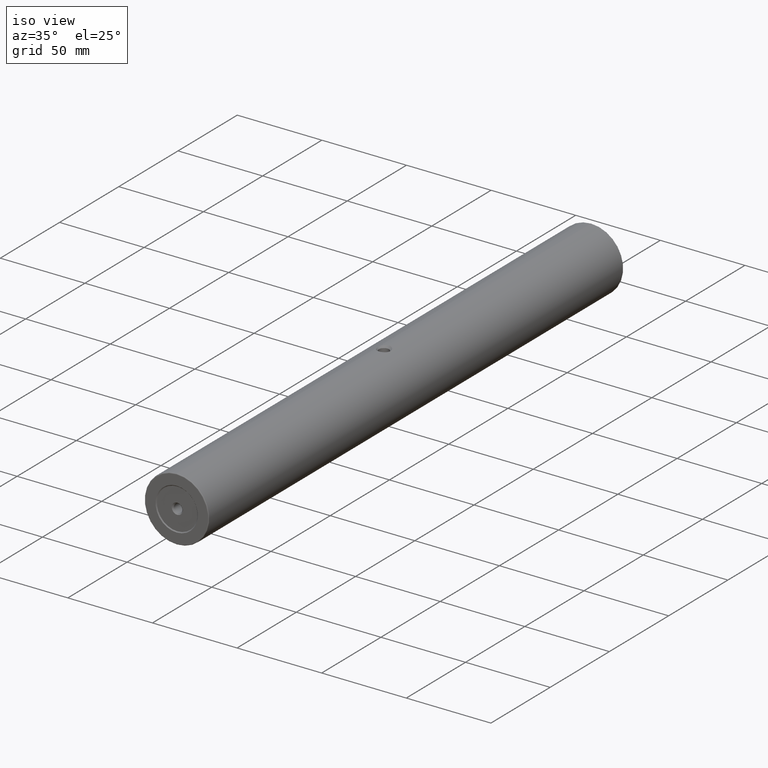
[diagram: clean part render]
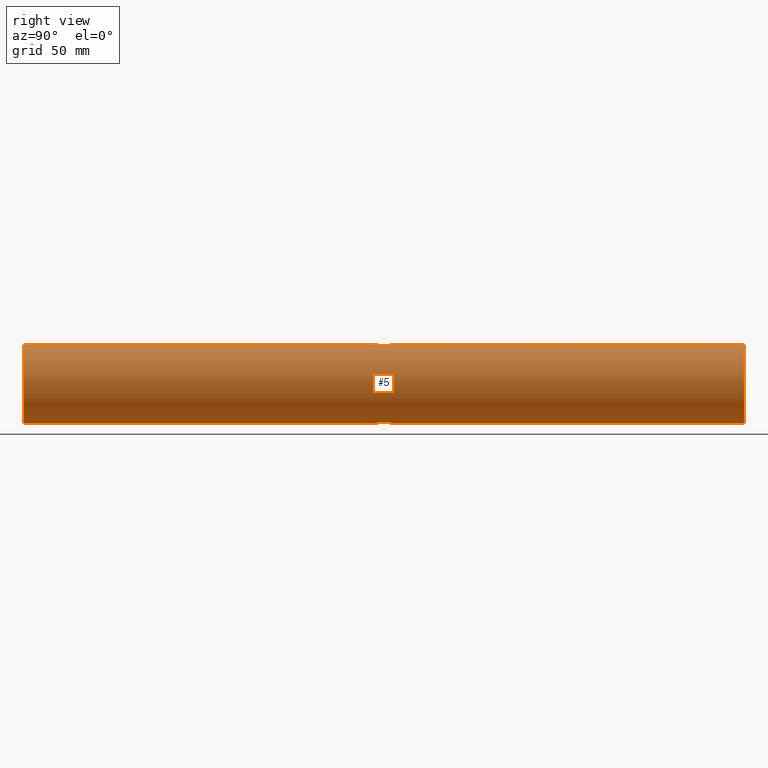
[diagram: tour spotlight — one face highlighted and labeled with its STEP entity id]
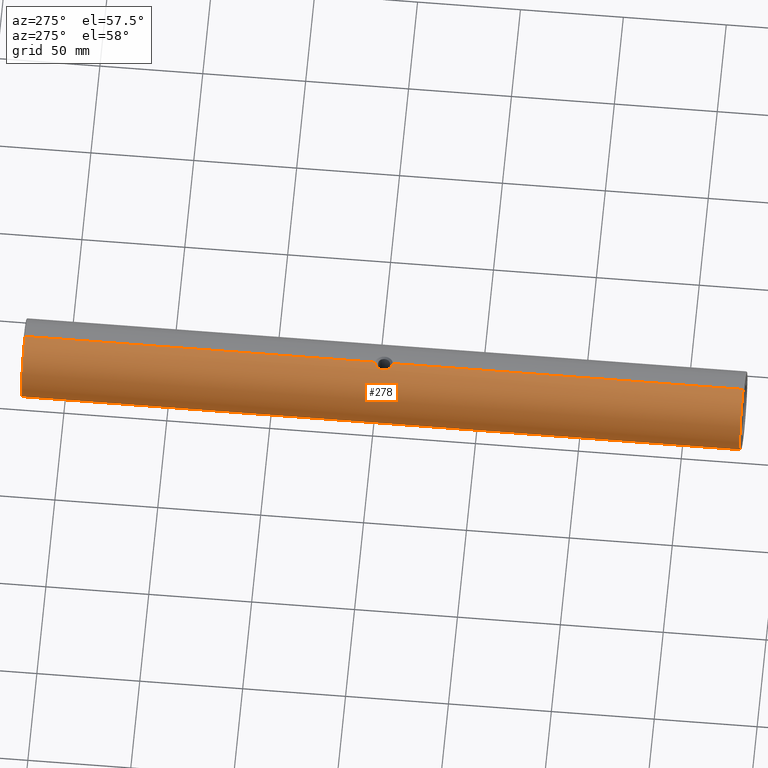
[diagram: tour spotlight — one face highlighted and labeled with its STEP entity id]
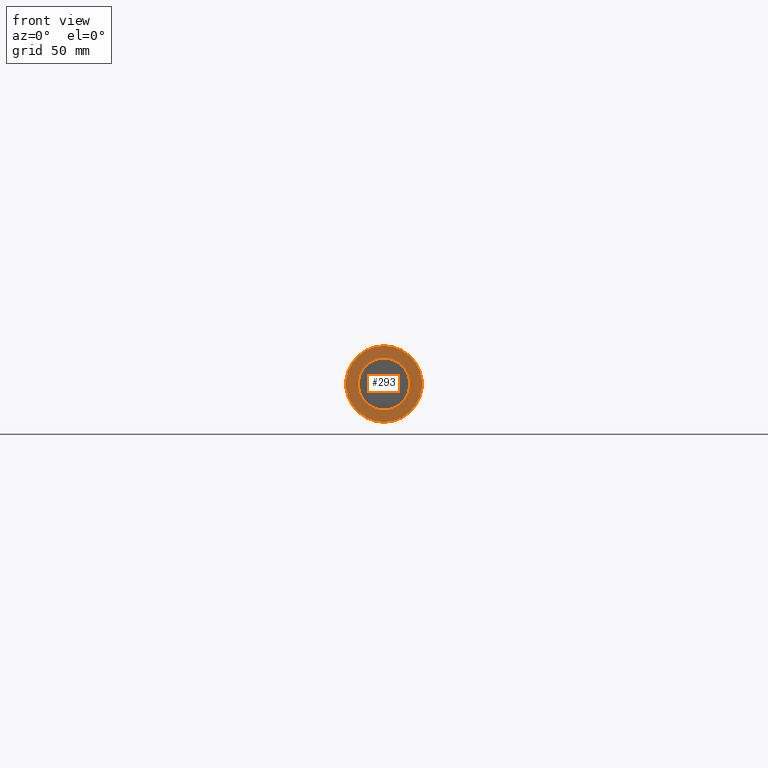
[diagram: tour spotlight — one face highlighted and labeled with its STEP entity id]
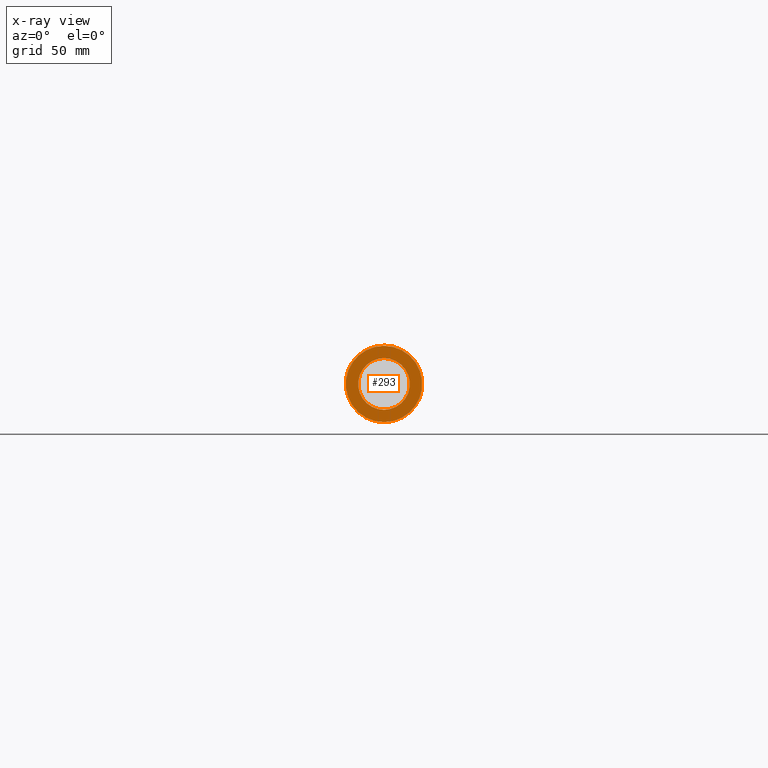
[diagram: x-ray of the same camera — body ghosted, this tour face saturated]
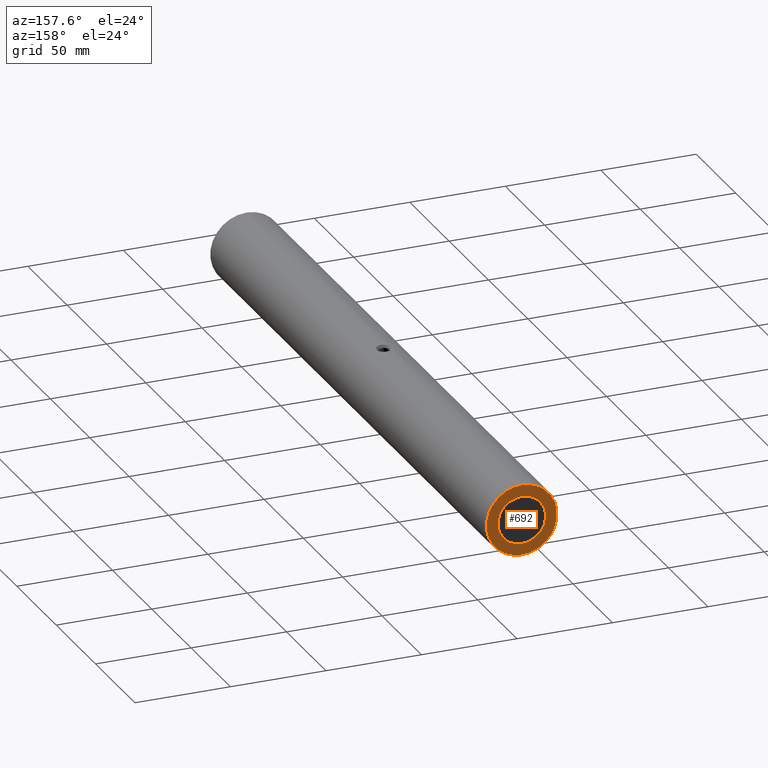
[diagram: tour spotlight — one face highlighted and labeled with its STEP entity id]
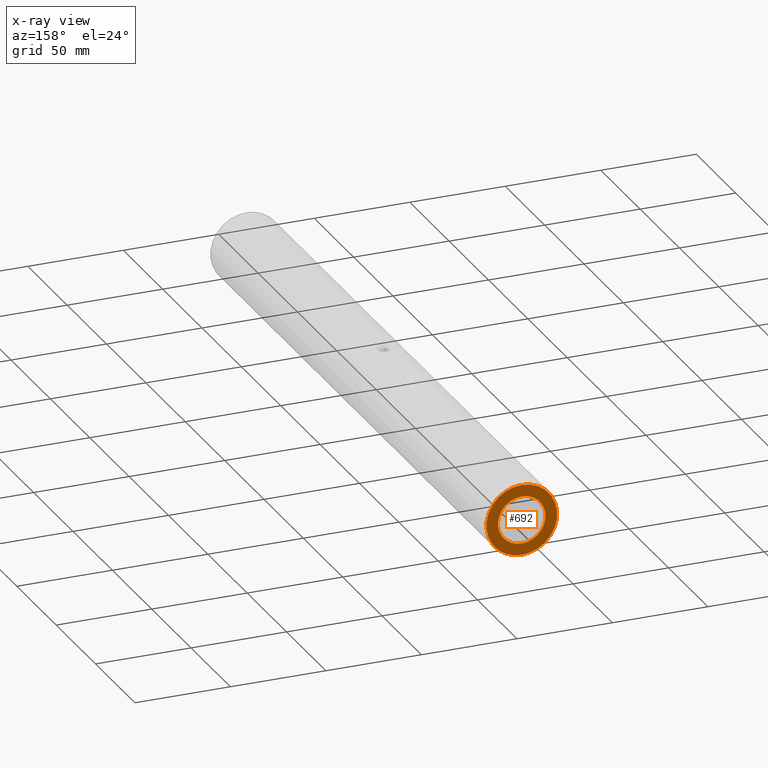
[diagram: x-ray of the same camera — body ghosted, this tour face saturated]
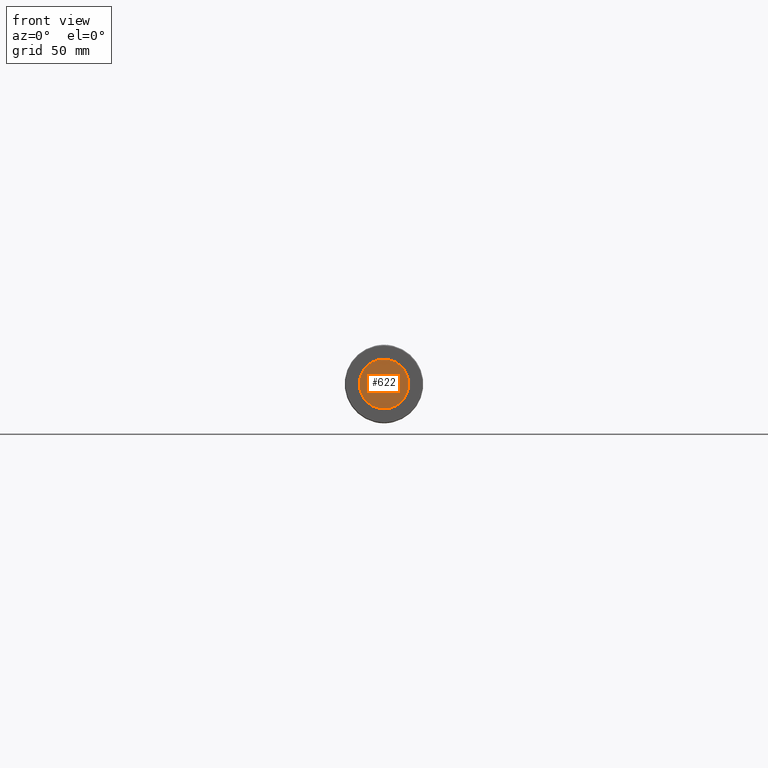
[diagram: tour spotlight — one face highlighted and labeled with its STEP entity id]
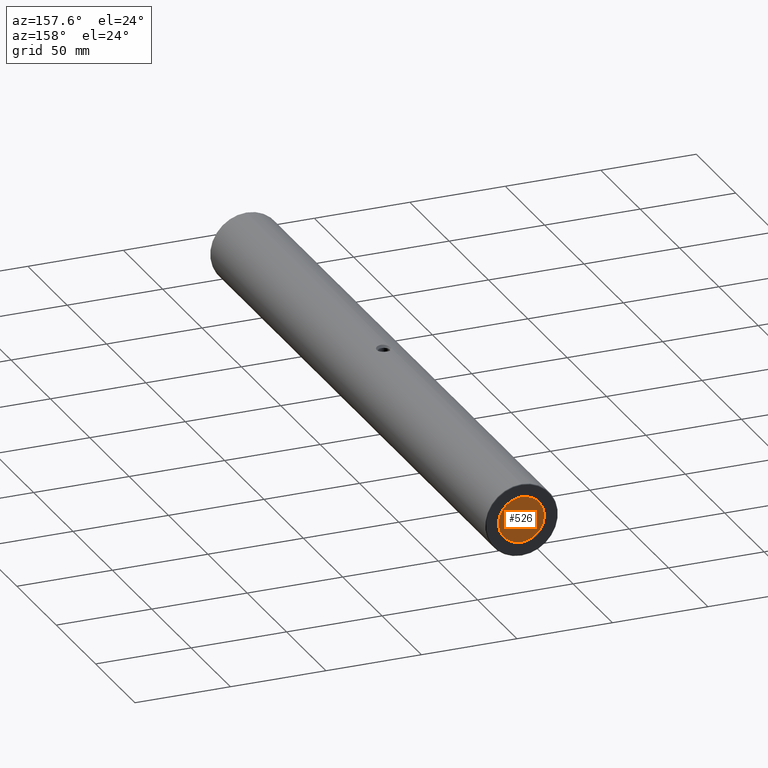
[diagram: tour spotlight — one face highlighted and labeled with its STEP entity id]
A machine part: a face-by-face anatomy tour. The part has 28 B-rep faces; the first image is the clean iso view, then the 6 largest visible faces are spotlighted one at a time (largest first), each with its STEP entity span.

Face 1 — right view, entity #5. In plain terms, the highlighted cylindrical surface (partial cylindrical patch) has radius 19 mm, axis along (-0, -1, -0).
Definition (entity closure, byte-faithful):
#5 = ADVANCED_FACE ( 'NONE', ( #117 ), #731, .T. ) ;
#9 = CARTESIAN_POINT ( 'NONE',  ( -84.69972560880194123, -8.430702186240790041, 418.9944016194976939 ) ) ;
#13 = CARTESIAN_POINT ( 'NONE',  ( -81.41341497436532393, -4.524701080299160516, 418.6133848591761648 ) ) ;
#21 = CARTESIAN_POINT ( 'NONE',  ( -83.46626106639050136, -7.995107640163255702, 418.9197388689088370 ) ) ;
#26 = EDGE_CURVE ( 'NONE', #324, #678, #150, .T. ) ;
#35 = CARTESIAN_POINT ( 'NONE',  ( -81.59279953389886941, -2.964568543362574360, 418.6494597328340888 ) ) ;
#36 = CARTESIAN_POINT ( 'NONE',  ( -85.22679983354142053, 170.7386600083257235, 400.0000000000000000 ) ) ;
#49 = DIRECTION ( 'NONE',  ( -0.0000000000000000000, -1.000000000000000000, -0.0000000000000000000 ) ) ;
#55 = EDGE_CURVE ( 'NONE', #324, #655, #899, .T. ) ;
#60 = VECTOR ( 'NONE', #838, 1000.000000000000000 ) ;
#61 = EDGE_CURVE ( 'NONE', #405, #655, #964, .T. ) ;
#78 = CARTESIAN_POINT ( 'NONE',  ( -82.82757549099136440, -7.533607839044134558, 418.8490779973516851 ) ) ;
#82 = DIRECTION ( 'NONE',  ( -0.0000000000000000000, -1.000000000000000000, -0.0000000000000000000 ) ) ;
#89 = ORIENTED_EDGE ( 'NONE', *, *, #862, .T. ) ;
#100 = ORIENTED_EDGE ( 'NONE', *, *, #61, .T. ) ;
#105 = CARTESIAN_POINT ( 'NONE',  ( -85.22679983354142053, -0.06133999167429866894, 419.0000000000000568 ) ) ;
#117 = FACE_OUTER_BOUND ( 'NONE', #646, .T. ) ;
#126 = DIRECTION ( 'NONE',  ( -0.0000000000000000000, -1.000000000000000000, -0.0000000000000000000 ) ) ;
#150 = B_SPLINE_CURVE_WITH_KNOTS ( 'NONE', 3,
 ( #356, #203, #210, #514, #588, #894, #593, #193, #521, #829, #291, #342, #198, #742, #658, #961, #980, #347 ),
 .UNSPECIFIED., .F., .F.,
 ( 4, 2, 2, 2, 2, 2, 2, 2, 4 ),
 ( 0.003733624680294762854, 0.004520577988407363350, 0.005307531296519963845, 0.006094484604632565208, 0.006881437912745166571, 0.007668391220857769669, 0.008455344528970371032, 0.009242297837082972395, 0.01002925114519557549 ),
 .UNSPECIFIED. ) ;
#162 = CARTESIAN_POINT ( 'NONE',  ( -81.41341497436532393, -4.261339991674279126, 418.6133848591761648 ) ) ;
#174 = VERTEX_POINT ( 'NONE', #845 ) ;
#181 = VERTEX_POINT ( 'NONE', #309 ) ;
#185 = CARTESIAN_POINT ( 'NONE',  ( -84.18753268678747759, -0.2111030241652349926, 418.9732691674435046 ) ) ;
#193 = CARTESIAN_POINT ( 'NONE',  ( -82.82757549099136440, -7.533607839044134558, 381.1509220026484286 ) ) ;
#197 = CARTESIAN_POINT ( 'NONE',  ( -83.94119362236200743, -0.2983445582111095007, 418.9579599544148323 ) ) ;
#198 = CARTESIAN_POINT ( 'NONE',  ( -81.77082803723338600, -6.051458313143355028, 381.3167330802414767 ) ) ;
#202 = CARTESIAN_POINT ( 'NONE',  ( -82.14497683168238495, -1.778754477084894647, 418.7488661386886406 ) ) ;
#203 = CARTESIAN_POINT ( 'NONE',  ( -84.96243902164792416, -8.461339991674275751, 381.0000000000000568 ) ) ;
#204 = CARTESIAN_POINT ( 'NONE',  ( -81.43639937781146898, -3.732814026306841892, 381.3818647936232082 ) ) ;
#210 = CARTESIAN_POINT ( 'NONE',  ( -84.69972560880194123, -8.430702186240790041, 381.0055983805024198 ) ) ;
#240 = CARTESIAN_POINT ( 'NONE',  ( -82.63814515825626472, -7.352595677616392322, 418.8236191524364926 ) ) ;
#257 = CARTESIAN_POINT ( 'NONE',  ( -85.22679983354142053, 170.7386600083257235, 381.0000000000000000 ) ) ;
#262 = CARTESIAN_POINT ( 'NONE',  ( -82.29571650229409840, -1.565921010254242685, 418.7733634629371409 ) ) ;
#265 = VECTOR ( 'NONE', #126, 1000.000000000000000 ) ;
#266 = VECTOR ( 'NONE', #965, 1000.000000000000000 ) ;
#273 = ORIENTED_EDGE ( 'NONE', *, *, #1010, .T. ) ;
#276 = ORIENTED_EDGE ( 'NONE', *, *, #567, .T. ) ;
#280 = B_SPLINE_CURVE_WITH_KNOTS ( 'NONE', 3,
 ( #735, #806, #281, #747, #35, #828, #657, #202, #262, #346, #753, #592, #815, #197, #185, #898, #820, #810 ),
 .UNSPECIFIED., .F., .F.,
 ( 4, 2, 2, 2, 2, 2, 2, 2, 4 ),
 ( 0.01002925114519557376, 0.01081737704504791807, 0.01160550294490026065, 0.01239362884475260496, 0.01318175474460494753, 0.01396988064445729011, 0.01475800654430963268, 0.01554613244416197526, 0.01633425834401431784 ),
 .UNSPECIFIED. ) ;
#281 = CARTESIAN_POINT ( 'NONE',  ( -81.43639937781144056, -3.732814026306843225, 418.6181352063767918 ) ) ;
#291 = CARTESIAN_POINT ( 'NONE',  ( -82.14309753980985818, -6.741247472261910012, 381.2514396459365571 ) ) ;
#297 = LINE ( 'NONE', #532, #60 ) ;
#306 = CARTESIAN_POINT ( 'NONE',  ( -83.46511704992532543, -0.5280370949836370453, 381.0803408399271461 ) ) ;
#309 = CARTESIAN_POINT ( 'NONE',  ( -85.22679983354142053, -8.461339991674268646, 419.0000000000000568 ) ) ;
#310 = CARTESIAN_POINT ( 'NONE',  ( -82.83102515499486174, -0.9863390833895689935, 381.1505157249931699 ) ) ;
#322 = CARTESIAN_POINT ( 'NONE',  ( -85.22679983354142053, -8.461339991674268646, 419.0000000000000568 ) ) ;
#324 = VERTEX_POINT ( 'NONE', #398 ) ;
#333 = VERTEX_POINT ( 'NONE', #937 ) ;
#334 = CARTESIAN_POINT ( 'NONE',  ( -83.24438980785724596, -7.856924346119599889, 418.8974619800173400 ) ) ;
#342 = CARTESIAN_POINT ( 'NONE',  ( -81.88059113652985843, -6.288202399889226690, 381.2965077447454973 ) ) ;
#345 = CARTESIAN_POINT ( 'NONE',  ( -85.22679983354142053, -178.7613399916742480, 381.0000000000000000 ) ) ;
#346 = CARTESIAN_POINT ( 'NONE',  ( -82.64087668775827922, -1.167056617506570415, 418.8240119711596208 ) ) ;
#347 = CARTESIAN_POINT ( 'NONE',  ( -81.41341497436532393, -4.261339991674277350, 381.3866151408238920 ) ) ;
#356 = CARTESIAN_POINT ( 'NONE',  ( -85.22679983354142053, -8.461339991674268646, 381.0000000000000000 ) ) ;
#371 = VERTEX_POINT ( 'NONE', #105 ) ;
#383 = CARTESIAN_POINT ( 'NONE',  ( -84.96393248785444996, -0.06133999167429707300, 381.0000000000000000 ) ) ;
#387 = EDGE_CURVE ( 'NONE', #482, #371, #280, .T. ) ;
#391 = ORIENTED_EDGE ( 'NONE', *, *, #55, .F. ) ;
#396 = CARTESIAN_POINT ( 'NONE',  ( -85.22679983354142053, 170.7386600083257235, 419.0000000000000568 ) ) ;
#397 = DIRECTION ( 'NONE',  ( 0.0000000000000000000, 0.0000000000000000000, 1.000000000000000000 ) ) ;
#398 = CARTESIAN_POINT ( 'NONE',  ( -85.22679983354142053, -8.461339991674268646, 381.0000000000000000 ) ) ;
#401 = EDGE_CURVE ( 'NONE', #333, #875, #674, .T. ) ;
#402 = CARTESIAN_POINT ( 'NONE',  ( -82.29671814351611658, -6.957786961682561611, 418.7735023986901979 ) ) ;
#405 = VERTEX_POINT ( 'NONE', #574 ) ;
#411 = ORIENTED_EDGE ( 'NONE', *, *, #26, .T. ) ;
#431 = DIRECTION ( 'NONE',  ( 0.0000000000000000000, 0.0000000000000000000, -1.000000000000000000 ) ) ;
#433 = AXIS2_PLACEMENT_3D ( 'NONE', #442, #749, #675 ) ;
#442 = CARTESIAN_POINT ( 'NONE',  ( -85.22679983354142053, -178.7613399916742480, 400.0000000000000000 ) ) ;
#452 = ORIENTED_EDGE ( 'NONE', *, *, #401, .F. ) ;
#457 = CARTESIAN_POINT ( 'NONE',  ( -85.22679983354142053, -0.06133999167429866894, 381.0000000000000000 ) ) ;
#470 = LINE ( 'NONE', #396, #698 ) ;
#482 = VERTEX_POINT ( 'NONE', #710 ) ;
#509 = CARTESIAN_POINT ( 'NONE',  ( -81.77187972696631846, -2.468561370532884602, 381.3165358254529451 ) ) ;
#514 = CARTESIAN_POINT ( 'NONE',  ( -84.18986350246656514, -8.312315706571794749, 381.0266011698889201 ) ) ;
#521 = CARTESIAN_POINT ( 'NONE',  ( -82.63814515825626472, -7.352595677616392322, 381.1763808475635642 ) ) ;
#532 = CARTESIAN_POINT ( 'NONE',  ( -85.22679983354142053, 170.7386600083257235, 419.0000000000000568 ) ) ;
#546 = EDGE_CURVE ( 'NONE', #181, #482, #857, .T. ) ;
#567 = EDGE_CURVE ( 'NONE', #333, #174, #774, .T. ) ;
#574 = CARTESIAN_POINT ( 'NONE',  ( -85.22679983354142053, -178.7613399916742480, 419.0000000000000568 ) ) ;
#577 = CARTESIAN_POINT ( 'NONE',  ( -81.41341497436532393, -4.261339991674277350, 381.3866151408238920 ) ) ;
#581 = CARTESIAN_POINT ( 'NONE',  ( -81.41341497436533814, -3.997586484548954822, 381.3866151408237783 ) ) ;
#588 = CARTESIAN_POINT ( 'NONE',  ( -83.93808702169893365, -8.222923423920713404, 381.0422776972831116 ) ) ;
#589 = CARTESIAN_POINT ( 'NONE',  ( -81.52612773688034054, -3.217498801581724077, 381.3638222746528754 ) ) ;
#592 = CARTESIAN_POINT ( 'NONE',  ( -83.24199987212080032, -0.6676668308104377614, 418.8971787009924697 ) ) ;
#593 = CARTESIAN_POINT ( 'NONE',  ( -83.24438980785724596, -7.856924346119599889, 381.1025380199827737 ) ) ;
#611 = CARTESIAN_POINT ( 'NONE',  ( -85.22679983354142053, -0.06133999167429866894, 381.0000000000000000 ) ) ;
#625 = CARTESIAN_POINT ( 'NONE',  ( -84.69707466841040855, -0.09239770115273913953, 381.0056742590844578 ) ) ;
#629 = CARTESIAN_POINT ( 'NONE',  ( -84.18986350246656514, -8.312315706571794749, 418.9733988301109093 ) ) ;
#633 = CARTESIAN_POINT ( 'NONE',  ( -84.96243902164792416, -8.461339991674275751, 419.0000000000001137 ) ) ;
#646 = EDGE_LOOP ( 'NONE', ( #276, #273, #972, #947, #958, #100, #391, #411, #89, #452 ) ) ;
#650 = CARTESIAN_POINT ( 'NONE',  ( -81.52508446630257311, -5.300719478809653218, 418.6359698950037682 ) ) ;
#655 = VERTEX_POINT ( 'NONE', #345 ) ;
#657 = CARTESIAN_POINT ( 'NONE',  ( -81.88335953815429491, -2.229144387579318209, 418.7039841074685000 ) ) ;
#658 = CARTESIAN_POINT ( 'NONE',  ( -81.52508446630257311, -5.300719478809650553, 381.3640301049963455 ) ) ;
#674 = LINE ( 'NONE', #257, #266 ) ;
#675 = DIRECTION ( 'NONE',  ( 0.0000000000000000000, 0.0000000000000000000, 1.000000000000000000 ) ) ;
#678 = VERTEX_POINT ( 'NONE', #577 ) ;
#688 = CARTESIAN_POINT ( 'NONE',  ( -81.41341497436532393, -4.261339991674277350, 381.3866151408238920 ) ) ;
#698 = VECTOR ( 'NONE', #993, 1000.000000000000000 ) ;
#705 = CARTESIAN_POINT ( 'NONE',  ( -82.14309753980985818, -6.741247472261910012, 418.7485603540634429 ) ) ;
#710 = CARTESIAN_POINT ( 'NONE',  ( -81.41341497436532393, -4.261339991674279126, 418.6133848591761648 ) ) ;
#719 = CARTESIAN_POINT ( 'NONE',  ( -81.77082803723338600, -6.051458313143361245, 418.6832669197586370 ) ) ;
#725 = CARTESIAN_POINT ( 'NONE',  ( -83.93808702169893365, -8.222923423920713404, 418.9577223027167747 ) ) ;
#731 = CYLINDRICAL_SURFACE ( 'NONE', #922, 19.00000000000001776 ) ;
#735 = CARTESIAN_POINT ( 'NONE',  ( -81.41341497436532393, -4.261339991674279126, 418.6133848591761648 ) ) ;
#742 = CARTESIAN_POINT ( 'NONE',  ( -81.59285872774556481, -5.558021363143366145, 381.3505314850146988 ) ) ;
#747 = CARTESIAN_POINT ( 'NONE',  ( -81.52612773688036896, -3.217498801581725854, 418.6361777253471814 ) ) ;
#749 = DIRECTION ( 'NONE',  ( 0.0000000000000000000, 1.000000000000000000, 0.0000000000000000000 ) ) ;
#753 = CARTESIAN_POINT ( 'NONE',  ( -82.83102515499484753, -0.9863390833895698817, 418.8494842750069438 ) ) ;
#765 = CARTESIAN_POINT ( 'NONE',  ( -82.29571650229409840, -1.565921010254241796, 381.2266365370629160 ) ) ;
#768 = CARTESIAN_POINT ( 'NONE',  ( -83.24199987212081453, -0.6676668308104372063, 381.1028212990075872 ) ) ;
#771 = CARTESIAN_POINT ( 'NONE',  ( -83.94119362236200743, -0.2983445582111096117, 381.0420400455853382 ) ) ;
#774 = CIRCLE ( 'NONE', #1005, 19.00000000000001776 ) ;
#777 = CARTESIAN_POINT ( 'NONE',  ( -84.18753268678749180, -0.2111030241652349648, 381.0267308325566091 ) ) ;
#781 = CARTESIAN_POINT ( 'NONE',  ( -81.59285872774556481, -5.558021363143371474, 418.6494685149854149 ) ) ;
#806 = CARTESIAN_POINT ( 'NONE',  ( -81.41341497436532393, -3.997586484548957486, 418.6133848591761648 ) ) ;
#810 = CARTESIAN_POINT ( 'NONE',  ( -85.22679983354142053, -0.06133999167429866894, 419.0000000000000568 ) ) ;
#815 = CARTESIAN_POINT ( 'NONE',  ( -83.46511704992533964, -0.5280370949836369343, 418.9196591600729107 ) ) ;
#816 = CARTESIAN_POINT ( 'NONE',  ( -81.88335953815429491, -2.229144387579305775, 381.2960158925316705 ) ) ;
#820 = CARTESIAN_POINT ( 'NONE',  ( -84.96393248785446417, -0.06133999167429705912, 419.0000000000001705 ) ) ;
#823 = CARTESIAN_POINT ( 'NONE',  ( -85.22679983354142053, 170.7386600083257235, 381.0000000000000000 ) ) ;
#828 = CARTESIAN_POINT ( 'NONE',  ( -81.77187972696634688, -2.468561370532886379, 418.6834641745472823 ) ) ;
#829 = CARTESIAN_POINT ( 'NONE',  ( -82.29671814351611658, -6.957786961682561611, 381.2264976013096884 ) ) ;
#838 = DIRECTION ( 'NONE',  ( -0.0000000000000000000, -1.000000000000000000, -0.0000000000000000000 ) ) ;
#845 = CARTESIAN_POINT ( 'NONE',  ( -85.22679983354142053, 170.2386600083257235, 419.0000000000000568 ) ) ;
#846 = CARTESIAN_POINT ( 'NONE',  ( -82.64087668775829343, -1.167056617506569971, 381.1759880288403792 ) ) ;
#857 = B_SPLINE_CURVE_WITH_KNOTS ( 'NONE', 3,
 ( #322, #633, #9, #629, #725, #21, #334, #78, #240, #402, #705, #936, #719, #781, #650, #869, #13, #162 ),
 .UNSPECIFIED., .F., .F.,
 ( 4, 2, 2, 2, 2, 2, 2, 2, 4 ),
 ( 0.003733624680294762854, 0.004520577988407363350, 0.005307531296519963845, 0.006094484604632564341, 0.006881437912745166571, 0.007668391220857767934, 0.008455344528970369297, 0.009242297837082972395, 0.01002925114519557376 ),
 .UNSPECIFIED. ) ;
#858 = CARTESIAN_POINT ( 'NONE',  ( -85.22679983354142053, 170.2386600083257235, 400.0000000000000000 ) ) ;
#862 = EDGE_CURVE ( 'NONE', #678, #875, #915, .T. ) ;
#869 = CARTESIAN_POINT ( 'NONE',  ( -81.43586367851925445, -4.785232307264688068, 418.6180255036908306 ) ) ;
#875 = VERTEX_POINT ( 'NONE', #611 ) ;
#894 = CARTESIAN_POINT ( 'NONE',  ( -83.46626106639050136, -7.995107640163255702, 381.0802611310913903 ) ) ;
#895 = CARTESIAN_POINT ( 'NONE',  ( -81.59279953389886941, -2.964568543362572584, 381.3505402671659681 ) ) ;
#898 = CARTESIAN_POINT ( 'NONE',  ( -84.69707466841043697, -0.09239770115273915341, 418.9943257409157127 ) ) ;
#899 = LINE ( 'NONE', #823, #265 ) ;
#900 = CARTESIAN_POINT ( 'NONE',  ( -82.14497683168241338, -1.778754477084883101, 381.2511338613114162 ) ) ;
#915 = B_SPLINE_CURVE_WITH_KNOTS ( 'NONE', 3,
 ( #688, #581, #204, #589, #895, #509, #816, #900, #765, #846, #310, #768, #306, #771, #777, #625, #383, #457 ),
 .UNSPECIFIED., .F., .F.,
 ( 4, 2, 2, 2, 2, 2, 2, 2, 4 ),
 ( 0.01002925114519557549, 0.01081737704504791807, 0.01160550294490026065, 0.01239362884475260496, 0.01318175474460494753, 0.01396988064445729011, 0.01475800654430963268, 0.01554613244416197526, 0.01633425834401431784 ),
 .UNSPECIFIED. ) ;
#922 = AXIS2_PLACEMENT_3D ( 'NONE', #36, #49, #431 ) ;
#936 = CARTESIAN_POINT ( 'NONE',  ( -81.88059113652985843, -6.288202399889226690, 418.7034922552546163 ) ) ;
#937 = CARTESIAN_POINT ( 'NONE',  ( -85.22679983354142053, 170.2386600083257235, 381.0000000000000000 ) ) ;
#947 = ORIENTED_EDGE ( 'NONE', *, *, #546, .F. ) ;
#958 = ORIENTED_EDGE ( 'NONE', *, *, #1015, .T. ) ;
#961 = CARTESIAN_POINT ( 'NONE',  ( -81.43586367851925445, -4.785232307264686291, 381.3819744963091694 ) ) ;
#964 = CIRCLE ( 'NONE', #433, 19.00000000000001776 ) ;
#965 = DIRECTION ( 'NONE',  ( -0.0000000000000000000, -1.000000000000000000, -0.0000000000000000000 ) ) ;
#972 = ORIENTED_EDGE ( 'NONE', *, *, #387, .F. ) ;
#980 = CARTESIAN_POINT ( 'NONE',  ( -81.41341497436532393, -4.524701080299158740, 381.3866151408239489 ) ) ;
#993 = DIRECTION ( 'NONE',  ( -0.0000000000000000000, -1.000000000000000000, -0.0000000000000000000 ) ) ;
#1005 = AXIS2_PLACEMENT_3D ( 'NONE', #858, #82, #397 ) ;
#1010 = EDGE_CURVE ( 'NONE', #174, #371, #470, .T. ) ;
#1015 = EDGE_CURVE ( 'NONE', #181, #405, #297, .T. ) ;

Face 2 — auxiliary view, entity #278. In plain terms, the highlighted cylindrical surface (partial cylindrical patch) has radius 19 mm, axis along (-0, -1, -0).
Definition (entity closure, byte-faithful):
#7 = CARTESIAN_POINT ( 'NONE',  ( -89.04018469271751712, -4.261339991674283567, 418.6133848591761648 ) ) ;
#10 = CARTESIAN_POINT ( 'NONE',  ( -86.26440072079715549, -0.2103516366053766184, 381.0266000980727767 ) ) ;
#23 = CARTESIAN_POINT ( 'NONE',  ( -86.51258600344370109, -0.2986253842693811777, 381.0420819662991789 ) ) ;
#29 = CARTESIAN_POINT ( 'NONE',  ( -89.04018469271751712, -4.261339991674283567, 418.6133848591761648 ) ) ;
#34 = CARTESIAN_POINT ( 'NONE',  ( -86.51381476393198966, -8.223524199725767758, 381.0421719862650889 ) ) ;
#41 = CARTESIAN_POINT ( 'NONE',  ( -88.86003986455601478, -5.560364975193093251, 418.6496055284342788 ) ) ;
#46 = CARTESIAN_POINT ( 'NONE',  ( -89.04018469271751712, -4.261339991674283567, 381.3866151408238920 ) ) ;
#52 = CARTESIAN_POINT ( 'NONE',  ( -85.22679983354142053, -8.461339991674268646, 381.0000000000000000 ) ) ;
#53 = CARTESIAN_POINT ( 'NONE',  ( -88.68189959692058721, -6.053472744008438156, 418.6834286230944713 ) ) ;
#55 = EDGE_CURVE ( 'NONE', #324, #655, #899, .T. ) ;
#57 = CARTESIAN_POINT ( 'NONE',  ( -88.15730954550808462, -1.565196067254975176, 418.7734514940302688 ) ) ;
#60 = VECTOR ( 'NONE', #838, 1000.000000000000000 ) ;
#62 = CARTESIAN_POINT ( 'NONE',  ( -88.92749338337961262, -3.217524007279799481, 418.6361735374826480 ) ) ;
#79 = DIRECTION ( 'NONE',  ( 0.0000000000000000000, 0.0000000000000000000, -1.000000000000000000 ) ) ;
#88 = CARTESIAN_POINT ( 'NONE',  ( -85.74900820764774778, -0.09101629208817690886, 381.0054266209082812 ) ) ;
#98 = CARTESIAN_POINT ( 'NONE',  ( -85.22679983354142053, -0.06133999167429866894, 381.0000000000000000 ) ) ;
#105 = CARTESIAN_POINT ( 'NONE',  ( -85.22679983354142053, -0.06133999167429866894, 419.0000000000000568 ) ) ;
#110 = CARTESIAN_POINT ( 'NONE',  ( -89.04018469271751712, -4.261339991674283567, 381.3866151408238920 ) ) ;
#116 = CARTESIAN_POINT ( 'NONE',  ( -85.22679983354142053, 170.2386600083257235, 400.0000000000000000 ) ) ;
#121 = B_SPLINE_CURVE_WITH_KNOTS ( 'NONE', 3,
 ( #1013, #620, #541, #234, #834, #610, #136, #757, #151, #57, #918, #219, #531, #764, #62, #172, #939, #7 ),
 .UNSPECIFIED., .F., .F.,
 ( 4, 2, 2, 2, 2, 2, 2, 2, 4 ),
 ( 0.01633425834401431784, 0.01712048413198442517, 0.01790670991995452904, 0.01869293570792463638, 0.01947916149589474372, 0.02026538728386484758, 0.02105161307183495145, 0.02183783885980505879, 0.02262406464777516613 ),
 .UNSPECIFIED. ) ;
#122 = CARTESIAN_POINT ( 'NONE',  ( -89.04018469271751712, -4.261339991674283567, 418.6133848591761648 ) ) ;
#126 = DIRECTION ( 'NONE',  ( -0.0000000000000000000, -1.000000000000000000, -0.0000000000000000000 ) ) ;
#129 = CARTESIAN_POINT ( 'NONE',  ( -88.57188684336087192, -6.290580469037319489, 381.2963019886966549 ) ) ;
#136 = CARTESIAN_POINT ( 'NONE',  ( -87.21008987037792792, -0.6665384523181927534, 418.8973495991008917 ) ) ;
#151 = CARTESIAN_POINT ( 'NONE',  ( -87.81247192360183362, -1.166828721202192165, 418.8240449429266050 ) ) ;
#157 = B_SPLINE_CURVE_WITH_KNOTS ( 'NONE', 3,
 ( #98, #413, #88, #10, #23, #160, #335, #163, #651, #326, #712, #943, #507, #354, #441, #668, #424, #110 ),
 .UNSPECIFIED., .F., .F.,
 ( 4, 2, 2, 2, 2, 2, 2, 2, 4 ),
 ( 0.01633425834401431784, 0.01712048413198442517, 0.01790670991995452904, 0.01869293570792463638, 0.01947916149589474372, 0.02026538728386484758, 0.02105161307183495145, 0.02183783885980505879, 0.02262406464777516613 ),
 .UNSPECIFIED. ) ;
#160 = CARTESIAN_POINT ( 'NONE',  ( -86.98394057735728779, -0.5256534841595331686, 381.0799482386107115 ) ) ;
#163 = CARTESIAN_POINT ( 'NONE',  ( -87.62330431072487613, -0.9868626275845048257, 381.1505960961178516 ) ) ;
#172 = CARTESIAN_POINT ( 'NONE',  ( -89.01727933074084831, -3.733366076984472315, 418.6181191867033817 ) ) ;
#174 = VERTEX_POINT ( 'NONE', #845 ) ;
#181 = VERTEX_POINT ( 'NONE', #309 ) ;
#183 = EDGE_CURVE ( 'NONE', #655, #405, #867, .T. ) ;
#214 = CARTESIAN_POINT ( 'NONE',  ( -85.75119431850812646, -8.431120250548380213, 418.9944772180206769 ) ) ;
#219 = CARTESIAN_POINT ( 'NONE',  ( -88.57090845425022962, -2.230408319438852871, 418.7038660641689489 ) ) ;
#228 = CARTESIAN_POINT ( 'NONE',  ( -85.22679983354142053, -178.7613399916742480, 400.0000000000000000 ) ) ;
#234 = CARTESIAN_POINT ( 'NONE',  ( -86.26440072079715549, -0.2103516366053766184, 418.9733999019272801 ) ) ;
#235 = AXIS2_PLACEMENT_3D ( 'NONE', #570, #323, #79 ) ;
#241 = FACE_OUTER_BOUND ( 'NONE', #243, .T. ) ;
#243 = EDGE_LOOP ( 'NONE', ( #529, #417, #889, #339, #909, #364, #982, #847, #844, #865 ) ) ;
#254 = EDGE_CURVE ( 'NONE', #371, #681, #121, .T. ) ;
#257 = CARTESIAN_POINT ( 'NONE',  ( -85.22679983354142053, 170.7386600083257235, 381.0000000000000000 ) ) ;
#265 = VECTOR ( 'NONE', #126, 1000.000000000000000 ) ;
#266 = VECTOR ( 'NONE', #965, 1000.000000000000000 ) ;
#274 = CARTESIAN_POINT ( 'NONE',  ( -87.20501299645449933, -7.859601616013272007, 381.1021099489511244 ) ) ;
#278 = ADVANCED_FACE ( 'NONE', ( #241 ), #639, .T. ) ;
#289 = CARTESIAN_POINT ( 'NONE',  ( -86.51381476393198966, -8.223524199725767758, 418.9578280137350816 ) ) ;
#297 = LINE ( 'NONE', #532, #60 ) ;
#309 = CARTESIAN_POINT ( 'NONE',  ( -85.22679983354142053, -8.461339991674268646, 419.0000000000000568 ) ) ;
#323 = DIRECTION ( 'NONE',  ( -0.0000000000000000000, -1.000000000000000000, -0.0000000000000000000 ) ) ;
#324 = VERTEX_POINT ( 'NONE', #398 ) ;
#326 = CARTESIAN_POINT ( 'NONE',  ( -88.15730954550808462, -1.565196067254975176, 381.2265485059697880 ) ) ;
#333 = VERTEX_POINT ( 'NONE', #937 ) ;
#335 = CARTESIAN_POINT ( 'NONE',  ( -87.21008987037792792, -0.6665384523181927534, 381.1026504008992788 ) ) ;
#339 = ORIENTED_EDGE ( 'NONE', *, *, #355, .T. ) ;
#340 = CARTESIAN_POINT ( 'NONE',  ( -85.75119431850812646, -8.431120250548380213, 381.0055227819794936 ) ) ;
#341 = CARTESIAN_POINT ( 'NONE',  ( -89.04018469271750291, -4.524194045943173315, 418.6133848591762217 ) ) ;
#345 = CARTESIAN_POINT ( 'NONE',  ( -85.22679983354142053, -178.7613399916742480, 381.0000000000000000 ) ) ;
#352 = CARTESIAN_POINT ( 'NONE',  ( -88.68189959692058721, -6.053472744008438156, 381.3165713769054150 ) ) ;
#354 = CARTESIAN_POINT ( 'NONE',  ( -88.86084895124396610, -2.964938769552044828, 381.3505518109733430 ) ) ;
#355 = EDGE_CURVE ( 'NONE', #875, #766, #157, .T. ) ;
#364 = ORIENTED_EDGE ( 'NONE', *, *, #55, .T. ) ;
#366 = CARTESIAN_POINT ( 'NONE',  ( -88.57188684336087192, -6.290580469037319489, 418.7036980113034588 ) ) ;
#369 = CARTESIAN_POINT ( 'NONE',  ( -89.04018469271751712, -4.261339991674283567, 381.3866151408238920 ) ) ;
#371 = VERTEX_POINT ( 'NONE', #105 ) ;
#382 = DIRECTION ( 'NONE',  ( 0.0000000000000000000, 1.000000000000000000, 0.0000000000000000000 ) ) ;
#396 = CARTESIAN_POINT ( 'NONE',  ( -85.22679983354142053, 170.7386600083257235, 419.0000000000000568 ) ) ;
#398 = CARTESIAN_POINT ( 'NONE',  ( -85.22679983354142053, -8.461339991674268646, 381.0000000000000000 ) ) ;
#399 = CIRCLE ( 'NONE', #966, 19.00000000000001776 ) ;
#401 = EDGE_CURVE ( 'NONE', #333, #875, #674, .T. ) ;
#405 = VERTEX_POINT ( 'NONE', #574 ) ;
#410 = B_SPLINE_CURVE_WITH_KNOTS ( 'NONE', 3,
 ( #46, #804, #439, #729, #519, #352, #129, #445, #667, #973, #746, #274, #734, #34, #897, #340, #752, #52 ),
 .UNSPECIFIED., .F., .F.,
 ( 4, 2, 2, 2, 2, 2, 2, 2, 4 ),
 ( 0.02262406464777516613, 0.02341192012650424731, 0.02419977560523332849, 0.02498763108396241314, 0.02577548656269149432, 0.02656334204142057551, 0.02735119752014966016, 0.02813905299887874134, 0.02892690847760782252 ),
 .UNSPECIFIED. ) ;
#413 = CARTESIAN_POINT ( 'NONE',  ( -85.48903342595741606, -0.06133999167429705912, 380.9999999999999432 ) ) ;
#417 = ORIENTED_EDGE ( 'NONE', *, *, #455, .T. ) ;
#424 = CARTESIAN_POINT ( 'NONE',  ( -89.04018469271751712, -3.999029654920558841, 381.3866151408238920 ) ) ;
#439 = CARTESIAN_POINT ( 'NONE',  ( -89.01782207825233684, -4.784939022142112641, 381.3819915527722060 ) ) ;
#441 = CARTESIAN_POINT ( 'NONE',  ( -88.92749338337961262, -3.217524007279799481, 381.3638264625174088 ) ) ;
#445 = CARTESIAN_POINT ( 'NONE',  ( -88.30796467933343763, -6.745178320961991325, 381.2510173717518569 ) ) ;
#446 = CARTESIAN_POINT ( 'NONE',  ( -88.92822251687863400, -5.302205923223622719, 418.6360285018084824 ) ) ;
#455 = EDGE_CURVE ( 'NONE', #174, #333, #399, .T. ) ;
#470 = LINE ( 'NONE', #396, #698 ) ;
#473 = EDGE_CURVE ( 'NONE', #681, #181, #499, .T. ) ;
#499 = B_SPLINE_CURVE_WITH_KNOTS ( 'NONE', 3,
 ( #29, #341, #740, #446, #41, #53, #366, #680, #882, #960, #605, #525, #984, #289, #912, #214, #569, #643 ),
 .UNSPECIFIED., .F., .F.,
 ( 4, 2, 2, 2, 2, 2, 2, 2, 4 ),
 ( 0.02262406464777516613, 0.02341192012650424731, 0.02419977560523332849, 0.02498763108396241314, 0.02577548656269149432, 0.02656334204142057551, 0.02735119752014966016, 0.02813905299887874134, 0.02892690847760782252 ),
 .UNSPECIFIED. ) ;
#507 = CARTESIAN_POINT ( 'NONE',  ( -88.68258810927235913, -2.470732174027440387, 381.3166984144028220 ) ) ;
#519 = CARTESIAN_POINT ( 'NONE',  ( -88.86003986455601478, -5.560364975193093251, 381.3503944715658349 ) ) ;
#520 = DIRECTION ( 'NONE',  ( -0.0000000000000000000, -1.000000000000000000, -0.0000000000000000000 ) ) ;
#525 = CARTESIAN_POINT ( 'NONE',  ( -87.20501299645449933, -7.859601616013272007, 418.8978900510489325 ) ) ;
#529 = ORIENTED_EDGE ( 'NONE', *, *, #1010, .F. ) ;
#531 = CARTESIAN_POINT ( 'NONE',  ( -88.68258810927235913, -2.470732174027440387, 418.6833015855973485 ) ) ;
#532 = CARTESIAN_POINT ( 'NONE',  ( -85.22679983354142053, 170.7386600083257235, 419.0000000000000568 ) ) ;
#541 = CARTESIAN_POINT ( 'NONE',  ( -85.74900820764774778, -0.09101629208817690886, 418.9945733790917757 ) ) ;
#569 = CARTESIAN_POINT ( 'NONE',  ( -85.49146371113677390, -8.461339991674272198, 419.0000000000001705 ) ) ;
#570 = CARTESIAN_POINT ( 'NONE',  ( -85.22679983354142053, 170.7386600083257235, 400.0000000000000000 ) ) ;
#574 = CARTESIAN_POINT ( 'NONE',  ( -85.22679983354142053, -178.7613399916742480, 419.0000000000000568 ) ) ;
#605 = CARTESIAN_POINT ( 'NONE',  ( -87.61973751830021229, -7.539048035020909921, 418.8498653824453868 ) ) ;
#610 = CARTESIAN_POINT ( 'NONE',  ( -86.98394057735728779, -0.5256534841595331686, 418.9200517613895727 ) ) ;
#611 = CARTESIAN_POINT ( 'NONE',  ( -85.22679983354142053, -0.06133999167429866894, 381.0000000000000000 ) ) ;
#620 = CARTESIAN_POINT ( 'NONE',  ( -85.48903342595741606, -0.06133999167429705912, 419.0000000000001705 ) ) ;
#639 = CYLINDRICAL_SURFACE ( 'NONE', #235, 19.00000000000001776 ) ;
#643 = CARTESIAN_POINT ( 'NONE',  ( -85.22679983354142053, -8.461339991674268646, 419.0000000000000568 ) ) ;
#648 = EDGE_CURVE ( 'NONE', #766, #324, #410, .T. ) ;
#651 = CARTESIAN_POINT ( 'NONE',  ( -87.81247192360183362, -1.166828721202192165, 381.1759550570734518 ) ) ;
#655 = VERTEX_POINT ( 'NONE', #345 ) ;
#667 = CARTESIAN_POINT ( 'NONE',  ( -88.15440500365676257, -6.961092752758728963, 381.2261065882171351 ) ) ;
#668 = CARTESIAN_POINT ( 'NONE',  ( -89.01727933074084831, -3.733366076984472315, 381.3818808132967320 ) ) ;
#674 = LINE ( 'NONE', #257, #266 ) ;
#680 = CARTESIAN_POINT ( 'NONE',  ( -88.30796467933343763, -6.745178320961991325, 418.7489826282481999 ) ) ;
#681 = VERTEX_POINT ( 'NONE', #122 ) ;
#698 = VECTOR ( 'NONE', #993, 1000.000000000000000 ) ;
#712 = CARTESIAN_POINT ( 'NONE',  ( -88.30889371447072733, -1.779107847670829301, 381.2511769563365078 ) ) ;
#729 = CARTESIAN_POINT ( 'NONE',  ( -88.92822251687863400, -5.302205923223622719, 381.3639714981914040 ) ) ;
#734 = CARTESIAN_POINT ( 'NONE',  ( -86.98410511525524669, -7.996885633606630961, 381.0799701750693771 ) ) ;
#740 = CARTESIAN_POINT ( 'NONE',  ( -89.01782207825233684, -4.784939022142112641, 418.6180084472278509 ) ) ;
#746 = CARTESIAN_POINT ( 'NONE',  ( -87.61973751830021229, -7.539048035020909921, 381.1501346175546701 ) ) ;
#752 = CARTESIAN_POINT ( 'NONE',  ( -85.49146371113677390, -8.461339991674272198, 381.0000000000000000 ) ) ;
#757 = CARTESIAN_POINT ( 'NONE',  ( -87.62330431072487613, -0.9868626275845048257, 418.8494039038823757 ) ) ;
#764 = CARTESIAN_POINT ( 'NONE',  ( -88.86084895124396610, -2.964938769552044828, 418.6494481890263728 ) ) ;
#766 = VERTEX_POINT ( 'NONE', #369 ) ;
#767 = DIRECTION ( 'NONE',  ( 0.0000000000000000000, 0.0000000000000000000, 1.000000000000000000 ) ) ;
#804 = CARTESIAN_POINT ( 'NONE',  ( -89.04018469271750291, -4.524194045943173315, 381.3866151408239489 ) ) ;
#821 = AXIS2_PLACEMENT_3D ( 'NONE', #228, #382, #767 ) ;
#823 = CARTESIAN_POINT ( 'NONE',  ( -85.22679983354142053, 170.7386600083257235, 381.0000000000000000 ) ) ;
#834 = CARTESIAN_POINT ( 'NONE',  ( -86.51258600344370109, -0.2986253842693811777, 418.9579180337008211 ) ) ;
#838 = DIRECTION ( 'NONE',  ( -0.0000000000000000000, -1.000000000000000000, -0.0000000000000000000 ) ) ;
#844 = ORIENTED_EDGE ( 'NONE', *, *, #473, .F. ) ;
#845 = CARTESIAN_POINT ( 'NONE',  ( -85.22679983354142053, 170.2386600083257235, 419.0000000000000568 ) ) ;
#847 = ORIENTED_EDGE ( 'NONE', *, *, #1015, .F. ) ;
#865 = ORIENTED_EDGE ( 'NONE', *, *, #254, .F. ) ;
#867 = CIRCLE ( 'NONE', #821, 19.00000000000001776 ) ;
#875 = VERTEX_POINT ( 'NONE', #611 ) ;
#882 = CARTESIAN_POINT ( 'NONE',  ( -88.15440500365676257, -6.961092752758728963, 418.7738934117829217 ) ) ;
#889 = ORIENTED_EDGE ( 'NONE', *, *, #401, .T. ) ;
#893 = DIRECTION ( 'NONE',  ( 0.0000000000000000000, 0.0000000000000000000, 1.000000000000000000 ) ) ;
#897 = CARTESIAN_POINT ( 'NONE',  ( -86.26127162816044347, -8.313090059122508535, 381.0264652089310289 ) ) ;
#899 = LINE ( 'NONE', #823, #265 ) ;
#909 = ORIENTED_EDGE ( 'NONE', *, *, #648, .T. ) ;
#912 = CARTESIAN_POINT ( 'NONE',  ( -86.26127162816044347, -8.313090059122508535, 418.9735347910690848 ) ) ;
#918 = CARTESIAN_POINT ( 'NONE',  ( -88.30889371447072733, -1.779107847670829301, 418.7488230436633785 ) ) ;
#937 = CARTESIAN_POINT ( 'NONE',  ( -85.22679983354142053, 170.2386600083257235, 381.0000000000000000 ) ) ;
#939 = CARTESIAN_POINT ( 'NONE',  ( -89.04018469271751712, -3.999029654920558841, 418.6133848591761648 ) ) ;
#943 = CARTESIAN_POINT ( 'NONE',  ( -88.57090845425022962, -2.230408319438852871, 381.2961339358312216 ) ) ;
#960 = CARTESIAN_POINT ( 'NONE',  ( -87.81196888986544025, -7.356176429533654471, 418.8241028157862615 ) ) ;
#965 = DIRECTION ( 'NONE',  ( -0.0000000000000000000, -1.000000000000000000, -0.0000000000000000000 ) ) ;
#966 = AXIS2_PLACEMENT_3D ( 'NONE', #116, #520, #893 ) ;
#973 = CARTESIAN_POINT ( 'NONE',  ( -87.81196888986544025, -7.356176429533654471, 381.1758971842136248 ) ) ;
#982 = ORIENTED_EDGE ( 'NONE', *, *, #183, .T. ) ;
#984 = CARTESIAN_POINT ( 'NONE',  ( -86.98410511525524669, -7.996885633606630961, 418.9200298249307366 ) ) ;
#993 = DIRECTION ( 'NONE',  ( -0.0000000000000000000, -1.000000000000000000, -0.0000000000000000000 ) ) ;
#1010 = EDGE_CURVE ( 'NONE', #174, #371, #470, .T. ) ;
#1013 = CARTESIAN_POINT ( 'NONE',  ( -85.22679983354142053, -0.06133999167429866894, 419.0000000000000568 ) ) ;
#1015 = EDGE_CURVE ( 'NONE', #181, #405, #297, .T. ) ;

Face 3 — front view, entity #293. An x-ray twin of the same camera follows (body ghosted, this face saturated) — the face is partly hidden behind the body. In plain terms, the highlighted planar face has unit normal (0, 1, 0).
Definition (entity closure, byte-faithful):
#76 = DIRECTION ( 'NONE',  ( -0.0000000000000000000, -1.000000000000000000, -0.0000000000000000000 ) ) ;
#86 = CIRCLE ( 'NONE', #868, 12.50000000000001066 ) ;
#149 = EDGE_CURVE ( 'NONE', #738, #623, #662, .T. ) ;
#154 = DIRECTION ( 'NONE',  ( 0.0000000000000000000, 0.0000000000000000000, 1.000000000000000000 ) ) ;
#166 = DIRECTION ( 'NONE',  ( -0.0000000000000000000, -1.000000000000000000, -0.0000000000000000000 ) ) ;
#189 = CIRCLE ( 'NONE', #905, 18.50000000000001776 ) ;
#196 = CARTESIAN_POINT ( 'NONE',  ( -85.22679983354142053, -179.2613399916742765, 381.5000000000000000 ) ) ;
#245 = DIRECTION ( 'NONE',  ( 0.0000000000000000000, 1.000000000000000000, 0.0000000000000000000 ) ) ;
#267 = VERTEX_POINT ( 'NONE', #480 ) ;
#283 = CARTESIAN_POINT ( 'NONE',  ( -85.22679983354142053, -179.2613399916742765, 418.5000000000000568 ) ) ;
#293 = ADVANCED_FACE ( 'NONE', ( #395, #726 ), #721, .F. ) ;
#343 = EDGE_CURVE ( 'NONE', #623, #738, #189, .T. ) ;
#344 = ORIENTED_EDGE ( 'NONE', *, *, #343, .T. ) ;
#353 = CIRCLE ( 'NONE', #419, 12.50000000000001066 ) ;
#389 = CARTESIAN_POINT ( 'NONE',  ( -85.22679983354142053, -179.2613399916742765, 400.0000000000000000 ) ) ;
#395 = FACE_BOUND ( 'NONE', #506, .T. ) ;
#412 = DIRECTION ( 'NONE',  ( -0.0000000000000000000, 1.000000000000000000, -0.0000000000000000000 ) ) ;
#419 = AXIS2_PLACEMENT_3D ( 'NONE', #389, #545, #703 ) ;
#480 = CARTESIAN_POINT ( 'NONE',  ( -85.22679983354142053, -179.2613399916742765, 387.5000000000000000 ) ) ;
#506 = EDGE_LOOP ( 'NONE', ( #745, #543 ) ) ;
#510 = EDGE_CURVE ( 'NONE', #572, #267, #86, .T. ) ;
#543 = ORIENTED_EDGE ( 'NONE', *, *, #967, .T. ) ;
#545 = DIRECTION ( 'NONE',  ( -0.0000000000000000000, 1.000000000000000000, -0.0000000000000000000 ) ) ;
#554 = DIRECTION ( 'NONE',  ( 0.0000000000000000000, -0.0000000000000000000, 1.000000000000000000 ) ) ;
#565 = ORIENTED_EDGE ( 'NONE', *, *, #149, .T. ) ;
#572 = VERTEX_POINT ( 'NONE', #716 ) ;
#623 = VERTEX_POINT ( 'NONE', #196 ) ;
#662 = CIRCLE ( 'NONE', #946, 18.50000000000001776 ) ;
#703 = DIRECTION ( 'NONE',  ( 0.0000000000000000000, 0.0000000000000000000, 1.000000000000000000 ) ) ;
#706 = CARTESIAN_POINT ( 'NONE',  ( -85.22679983354142053, -179.2613399916742765, 400.0000000000000000 ) ) ;
#716 = CARTESIAN_POINT ( 'NONE',  ( -85.22679983354142053, -179.2613399916742765, 412.5000000000000568 ) ) ;
#721 = PLANE ( 'NONE',  #805 ) ;
#726 = FACE_OUTER_BOUND ( 'NONE', #873, .T. ) ;
#738 = VERTEX_POINT ( 'NONE', #283 ) ;
#745 = ORIENTED_EDGE ( 'NONE', *, *, #510, .T. ) ;
#778 = DIRECTION ( 'NONE',  ( 0.0000000000000000000, 0.0000000000000000000, 1.000000000000000000 ) ) ;
#788 = DIRECTION ( 'NONE',  ( 0.0000000000000000000, 0.0000000000000000000, 1.000000000000000000 ) ) ;
#799 = CARTESIAN_POINT ( 'NONE',  ( -85.22679983354142053, -179.2613399916742765, 400.0000000000000000 ) ) ;
#805 = AXIS2_PLACEMENT_3D ( 'NONE', #706, #245, #554 ) ;
#837 = CARTESIAN_POINT ( 'NONE',  ( -85.22679983354142053, -179.2613399916742765, 400.0000000000000000 ) ) ;
#868 = AXIS2_PLACEMENT_3D ( 'NONE', #876, #412, #778 ) ;
#873 = EDGE_LOOP ( 'NONE', ( #565, #344 ) ) ;
#876 = CARTESIAN_POINT ( 'NONE',  ( -85.22679983354142053, -179.2613399916742765, 400.0000000000000000 ) ) ;
#905 = AXIS2_PLACEMENT_3D ( 'NONE', #799, #166, #788 ) ;
#946 = AXIS2_PLACEMENT_3D ( 'NONE', #837, #76, #154 ) ;
#967 = EDGE_CURVE ( 'NONE', #267, #572, #353, .T. ) ;

Face 4 — auxiliary view, entity #692. An x-ray twin of the same camera follows (body ghosted, this face saturated) — the face is partly hidden behind the body. In plain terms, the highlighted planar face has unit normal (0, 1, 0).
Definition (entity closure, byte-faithful):
#25 = VERTEX_POINT ( 'NONE', #987 ) ;
#87 = DIRECTION ( 'NONE',  ( 0.0000000000000000000, 0.0000000000000000000, 1.000000000000000000 ) ) ;
#96 = VERTEX_POINT ( 'NONE', #300 ) ;
#108 = ORIENTED_EDGE ( 'NONE', *, *, #186, .F. ) ;
#109 = CARTESIAN_POINT ( 'NONE',  ( -85.22679983354142053, 170.7386600083257235, 400.0000000000000000 ) ) ;
#115 = CARTESIAN_POINT ( 'NONE',  ( -85.22679983354142053, 170.7386600083257235, 418.5000000000000568 ) ) ;
#168 = AXIS2_PLACEMENT_3D ( 'NONE', #938, #406, #87 ) ;
#178 = DIRECTION ( 'NONE',  ( 0.0000000000000000000, 1.000000000000000000, 0.0000000000000000000 ) ) ;
#186 = EDGE_CURVE ( 'NONE', #25, #96, #1002, .T. ) ;
#211 = DIRECTION ( 'NONE',  ( 0.0000000000000000000, 1.000000000000000000, 0.0000000000000000000 ) ) ;
#261 = PLANE ( 'NONE',  #908 ) ;
#288 = CIRCLE ( 'NONE', #744, 12.50000000000001066 ) ;
#296 = CARTESIAN_POINT ( 'NONE',  ( -85.22679983354142053, 170.7386600083257235, 400.0000000000000000 ) ) ;
#300 = CARTESIAN_POINT ( 'NONE',  ( -85.22679983354142053, 170.7386600083257235, 412.5000000000000568 ) ) ;
#378 = DIRECTION ( 'NONE',  ( 0.0000000000000000000, 0.0000000000000000000, 1.000000000000000000 ) ) ;
#394 = CARTESIAN_POINT ( 'NONE',  ( -85.22679983354142053, 170.7386600083257235, 400.0000000000000000 ) ) ;
#406 = DIRECTION ( 'NONE',  ( 0.0000000000000000000, 1.000000000000000000, 0.0000000000000000000 ) ) ;
#436 = EDGE_LOOP ( 'NONE', ( #841, #874 ) ) ;
#437 = AXIS2_PLACEMENT_3D ( 'NONE', #824, #211, #682 ) ;
#477 = CIRCLE ( 'NONE', #168, 18.50000000000001776 ) ;
#486 = DIRECTION ( 'NONE',  ( 0.0000000000000000000, 0.0000000000000000000, 1.000000000000000000 ) ) ;
#495 = AXIS2_PLACEMENT_3D ( 'NONE', #296, #626, #378 ) ;
#530 = EDGE_CURVE ( 'NONE', #733, #616, #477, .T. ) ;
#539 = EDGE_CURVE ( 'NONE', #96, #25, #288, .T. ) ;
#599 = CARTESIAN_POINT ( 'NONE',  ( -85.22679983354142053, 170.7386600083257235, 381.5000000000000000 ) ) ;
#616 = VERTEX_POINT ( 'NONE', #115 ) ;
#626 = DIRECTION ( 'NONE',  ( 0.0000000000000000000, 1.000000000000000000, 0.0000000000000000000 ) ) ;
#656 = FACE_BOUND ( 'NONE', #954, .T. ) ;
#660 = DIRECTION ( 'NONE',  ( 0.0000000000000000000, 1.000000000000000000, 0.0000000000000000000 ) ) ;
#682 = DIRECTION ( 'NONE',  ( 0.0000000000000000000, 0.0000000000000000000, 1.000000000000000000 ) ) ;
#692 = ADVANCED_FACE ( 'NONE', ( #656, #959 ), #261, .T. ) ;
#733 = VERTEX_POINT ( 'NONE', #599 ) ;
#744 = AXIS2_PLACEMENT_3D ( 'NONE', #394, #178, #486 ) ;
#769 = ORIENTED_EDGE ( 'NONE', *, *, #539, .F. ) ;
#776 = EDGE_CURVE ( 'NONE', #616, #733, #870, .T. ) ;
#824 = CARTESIAN_POINT ( 'NONE',  ( -85.22679983354142053, 170.7386600083257235, 400.0000000000000000 ) ) ;
#841 = ORIENTED_EDGE ( 'NONE', *, *, #776, .T. ) ;
#870 = CIRCLE ( 'NONE', #437, 18.50000000000001776 ) ;
#874 = ORIENTED_EDGE ( 'NONE', *, *, #530, .T. ) ;
#908 = AXIS2_PLACEMENT_3D ( 'NONE', #109, #660, #910 ) ;
#910 = DIRECTION ( 'NONE',  ( 0.0000000000000000000, -0.0000000000000000000, 1.000000000000000000 ) ) ;
#938 = CARTESIAN_POINT ( 'NONE',  ( -85.22679983354142053, 170.7386600083257235, 400.0000000000000000 ) ) ;
#954 = EDGE_LOOP ( 'NONE', ( #769, #108 ) ) ;
#959 = FACE_OUTER_BOUND ( 'NONE', #436, .T. ) ;
#987 = CARTESIAN_POINT ( 'NONE',  ( -85.22679983354142053, 170.7386600083257235, 387.5000000000000000 ) ) ;
#1002 = CIRCLE ( 'NONE', #495, 12.50000000000001066 ) ;

Face 5 — front view, entity #622. In plain terms, the highlighted planar face has unit normal (0, -1, 0).
Definition (entity closure, byte-faithful):
#40 = CIRCLE ( 'NONE', #303, 3.249999999999919620 ) ;
#71 = AXIS2_PLACEMENT_3D ( 'NONE', #201, #586, #420 ) ;
#81 = EDGE_CURVE ( 'NONE', #797, #649, #40, .T. ) ;
#107 = DIRECTION ( 'NONE',  ( -0.0000000000000000000, 1.000000000000000000, -0.0000000000000000000 ) ) ;
#123 = AXIS2_PLACEMENT_3D ( 'NONE', #275, #501, #974 ) ;
#128 = ORIENTED_EDGE ( 'NONE', *, *, #628, .F. ) ;
#188 = ORIENTED_EDGE ( 'NONE', *, *, #81, .T. ) ;
#201 = CARTESIAN_POINT ( 'NONE',  ( -85.22679983354142053, -178.7613399916742480, 400.0000000000000000 ) ) ;
#250 = CIRCLE ( 'NONE', #890, 12.00000000000001066 ) ;
#275 = CARTESIAN_POINT ( 'NONE',  ( -85.22679983354142053, -178.7613399916742480, 400.0000000000000000 ) ) ;
#303 = AXIS2_PLACEMENT_3D ( 'NONE', #367, #107, #527 ) ;
#337 = EDGE_LOOP ( 'NONE', ( #490, #188 ) ) ;
#367 = CARTESIAN_POINT ( 'NONE',  ( -85.22679983354142053, -178.7613399916742480, 400.0000000000000000 ) ) ;
#370 = EDGE_CURVE ( 'NONE', #649, #797, #888, .T. ) ;
#420 = DIRECTION ( 'NONE',  ( 0.0000000000000000000, 0.0000000000000000000, 1.000000000000000000 ) ) ;
#468 = CARTESIAN_POINT ( 'NONE',  ( -85.22679983354142053, -178.7613399916742480, 412.0000000000000568 ) ) ;
#490 = ORIENTED_EDGE ( 'NONE', *, *, #370, .T. ) ;
#491 = PLANE ( 'NONE',  #71 ) ;
#501 = DIRECTION ( 'NONE',  ( -0.0000000000000000000, 1.000000000000000000, -0.0000000000000000000 ) ) ;
#511 = VERTEX_POINT ( 'NONE', #468 ) ;
#512 = FACE_BOUND ( 'NONE', #337, .T. ) ;
#522 = CARTESIAN_POINT ( 'NONE',  ( -85.22679983354142053, -178.7613399916742480, 403.2499999999999432 ) ) ;
#527 = DIRECTION ( 'NONE',  ( 0.0000000000000000000, 0.0000000000000000000, -1.000000000000000000 ) ) ;
#542 = DIRECTION ( 'NONE',  ( -0.0000000000000000000, 1.000000000000000000, -0.0000000000000000000 ) ) ;
#551 = DIRECTION ( 'NONE',  ( 0.0000000000000000000, 0.0000000000000000000, -1.000000000000000000 ) ) ;
#586 = DIRECTION ( 'NONE',  ( 0.0000000000000000000, -1.000000000000000000, 0.0000000000000000000 ) ) ;
#591 = FACE_OUTER_BOUND ( 'NONE', #991, .T. ) ;
#622 = ADVANCED_FACE ( 'NONE', ( #512, #591 ), #491, .T. ) ;
#628 = EDGE_CURVE ( 'NONE', #511, #751, #645, .T. ) ;
#645 = CIRCLE ( 'NONE', #986, 12.00000000000001066 ) ;
#649 = VERTEX_POINT ( 'NONE', #886 ) ;
#722 = ORIENTED_EDGE ( 'NONE', *, *, #880, .F. ) ;
#751 = VERTEX_POINT ( 'NONE', #755 ) ;
#755 = CARTESIAN_POINT ( 'NONE',  ( -85.22679983354142053, -178.7613399916742480, 388.0000000000000000 ) ) ;
#797 = VERTEX_POINT ( 'NONE', #522 ) ;
#880 = EDGE_CURVE ( 'NONE', #751, #511, #250, .T. ) ;
#881 = DIRECTION ( 'NONE',  ( -0.0000000000000000000, 1.000000000000000000, -0.0000000000000000000 ) ) ;
#886 = CARTESIAN_POINT ( 'NONE',  ( -85.22679983354142053, -178.7613399916742480, 396.7500000000001137 ) ) ;
#888 = CIRCLE ( 'NONE', #123, 3.249999999999919620 ) ;
#890 = AXIS2_PLACEMENT_3D ( 'NONE', #931, #542, #551 ) ;
#903 = CARTESIAN_POINT ( 'NONE',  ( -85.22679983354142053, -178.7613399916742480, 400.0000000000000000 ) ) ;
#931 = CARTESIAN_POINT ( 'NONE',  ( -85.22679983354142053, -178.7613399916742480, 400.0000000000000000 ) ) ;
#974 = DIRECTION ( 'NONE',  ( 0.0000000000000000000, 0.0000000000000000000, -1.000000000000000000 ) ) ;
#983 = DIRECTION ( 'NONE',  ( 0.0000000000000000000, 0.0000000000000000000, -1.000000000000000000 ) ) ;
#986 = AXIS2_PLACEMENT_3D ( 'NONE', #903, #881, #983 ) ;
#991 = EDGE_LOOP ( 'NONE', ( #128, #722 ) ) ;

Face 6 — auxiliary view, entity #526. In plain terms, the highlighted planar face has unit normal (0, 1, 0).
Definition (entity closure, byte-faithful):
#12 = ORIENTED_EDGE ( 'NONE', *, *, #325, .T. ) ;
#45 = ORIENTED_EDGE ( 'NONE', *, *, #549, .T. ) ;
#97 = FACE_OUTER_BOUND ( 'NONE', #941, .T. ) ;
#112 = CARTESIAN_POINT ( 'NONE',  ( -85.22679983354142053, 170.2386600083257235, 400.0000000000000000 ) ) ;
#127 = DIRECTION ( 'NONE',  ( 0.0000000000000000000, 1.000000000000000000, 0.0000000000000000000 ) ) ;
#158 = CARTESIAN_POINT ( 'NONE',  ( -85.22679983354142053, 170.2386600083257235, 400.0000000000000000 ) ) ;
#165 = FACE_BOUND ( 'NONE', #195, .T. ) ;
#179 = CARTESIAN_POINT ( 'NONE',  ( -85.22679983354142053, 170.2386600083257235, 400.0000000000000000 ) ) ;
#194 = CARTESIAN_POINT ( 'NONE',  ( -85.22679983354142053, 170.2386600083257235, 396.7500000000001137 ) ) ;
#195 = EDGE_LOOP ( 'NONE', ( #12, #255 ) ) ;
#217 = VERTEX_POINT ( 'NONE', #992 ) ;
#218 = EDGE_CURVE ( 'NONE', #796, #826, #547, .T. ) ;
#238 = DIRECTION ( 'NONE',  ( 0.0000000000000000000, 0.0000000000000000000, 1.000000000000000000 ) ) ;
#255 = ORIENTED_EDGE ( 'NONE', *, *, #218, .T. ) ;
#304 = AXIS2_PLACEMENT_3D ( 'NONE', #158, #942, #238 ) ;
#317 = CIRCLE ( 'NONE', #562, 3.249999999999919620 ) ;
#325 = EDGE_CURVE ( 'NONE', #826, #796, #317, .T. ) ;
#348 = CARTESIAN_POINT ( 'NONE',  ( -85.22679983354142053, 170.2386600083257235, 403.2499999999999432 ) ) ;
#373 = CIRCLE ( 'NONE', #761, 12.00000000000001066 ) ;
#388 = DIRECTION ( 'NONE',  ( -0.0000000000000000000, -1.000000000000000000, -0.0000000000000000000 ) ) ;
#474 = PLANE ( 'NONE',  #923 ) ;
#487 = DIRECTION ( 'NONE',  ( 0.0000000000000000000, 0.0000000000000000000, 1.000000000000000000 ) ) ;
#526 = ADVANCED_FACE ( 'NONE', ( #165, #97 ), #474, .T. ) ;
#547 = CIRCLE ( 'NONE', #560, 3.249999999999919620 ) ;
#549 = EDGE_CURVE ( 'NONE', #217, #575, #822, .T. ) ;
#559 = DIRECTION ( 'NONE',  ( 0.0000000000000000000, 1.000000000000000000, 0.0000000000000000000 ) ) ;
#560 = AXIS2_PLACEMENT_3D ( 'NONE', #693, #388, #921 ) ;
#562 = AXIS2_PLACEMENT_3D ( 'NONE', #179, #782, #487 ) ;
#575 = VERTEX_POINT ( 'NONE', #638 ) ;
#638 = CARTESIAN_POINT ( 'NONE',  ( -85.22679983354142053, 170.2386600083257235, 388.0000000000000000 ) ) ;
#693 = CARTESIAN_POINT ( 'NONE',  ( -85.22679983354142053, 170.2386600083257235, 400.0000000000000000 ) ) ;
#748 = EDGE_CURVE ( 'NONE', #575, #217, #373, .T. ) ;
#750 = DIRECTION ( 'NONE',  ( 0.0000000000000000000, 0.0000000000000000000, 1.000000000000000000 ) ) ;
#761 = AXIS2_PLACEMENT_3D ( 'NONE', #112, #127, #750 ) ;
#782 = DIRECTION ( 'NONE',  ( -0.0000000000000000000, -1.000000000000000000, -0.0000000000000000000 ) ) ;
#786 = DIRECTION ( 'NONE',  ( 0.0000000000000000000, -0.0000000000000000000, 1.000000000000000000 ) ) ;
#796 = VERTEX_POINT ( 'NONE', #194 ) ;
#822 = CIRCLE ( 'NONE', #304, 12.00000000000001066 ) ;
#826 = VERTEX_POINT ( 'NONE', #348 ) ;
#921 = DIRECTION ( 'NONE',  ( 0.0000000000000000000, 0.0000000000000000000, 1.000000000000000000 ) ) ;
#923 = AXIS2_PLACEMENT_3D ( 'NONE', #955, #559, #786 ) ;
#941 = EDGE_LOOP ( 'NONE', ( #45, #994 ) ) ;
#942 = DIRECTION ( 'NONE',  ( 0.0000000000000000000, 1.000000000000000000, 0.0000000000000000000 ) ) ;
#955 = CARTESIAN_POINT ( 'NONE',  ( -85.22679983354142053, 170.2386600083257235, 400.0000000000000000 ) ) ;
#992 = CARTESIAN_POINT ( 'NONE',  ( -85.22679983354142053, 170.2386600083257235, 412.0000000000000568 ) ) ;
#994 = ORIENTED_EDGE ( 'NONE', *, *, #748, .T. ) ;